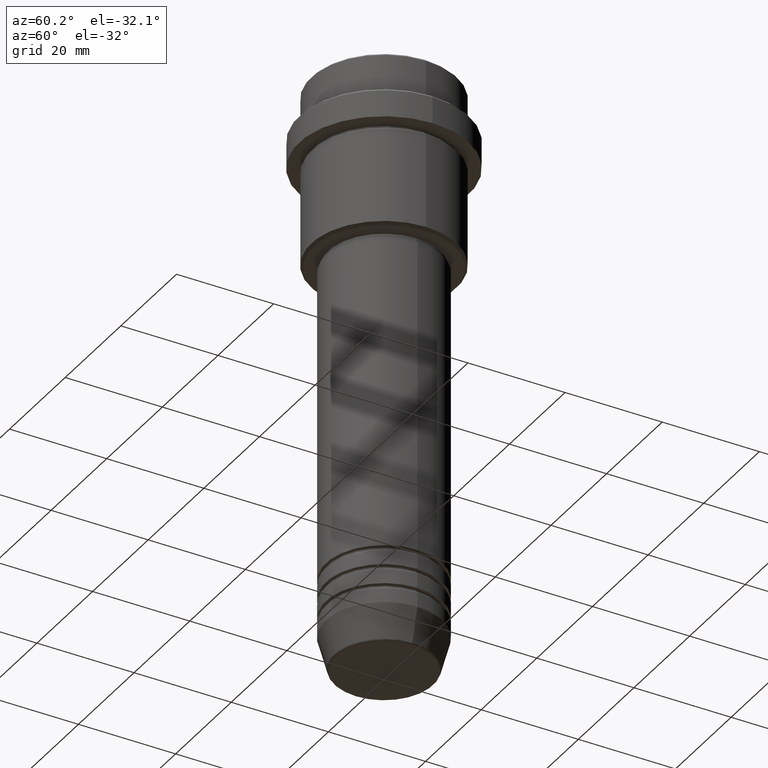
[diagram: clean part render]
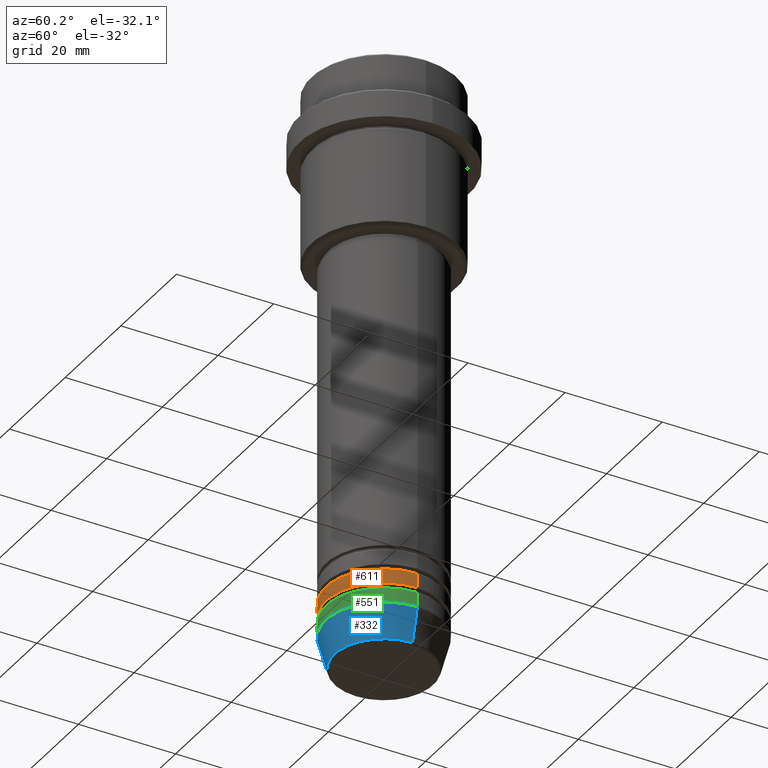
[diagram: same view with three faces highlighted in distinct colors, each labeled with its STEP entity id]
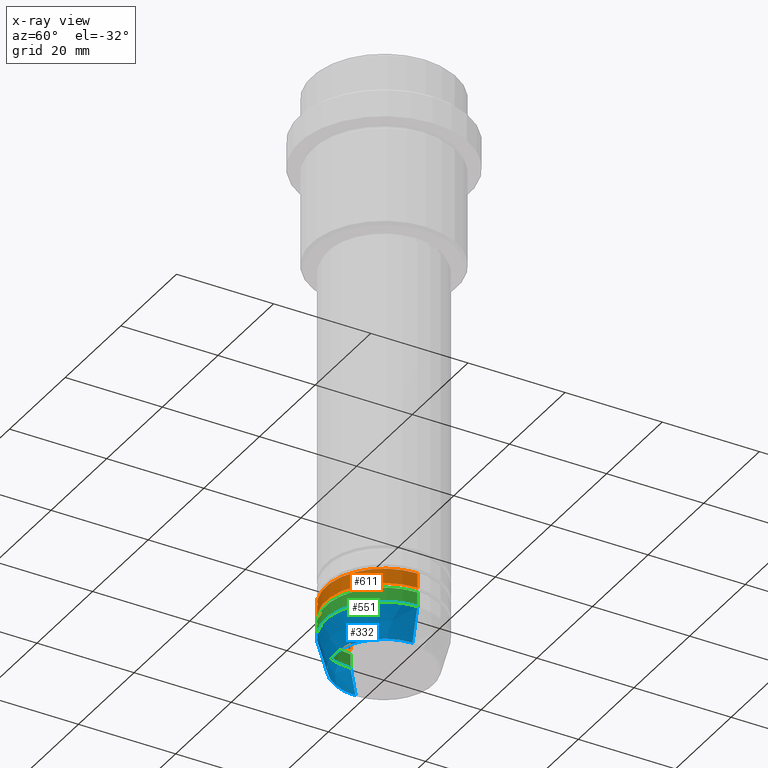
[diagram: x-ray of the same camera — body ghosted, the three highlighted faces saturated]
A machine part, auxiliary view with three faces highlighted in distinct colors.
The next image is the same camera in x-ray (body ghosted, the three faces saturated) — at least one of them is partly hidden behind the body in this view.
Their STEP definitions:

[orange] entity #611 — the highlighted cylindrical surface (partial cylindrical patch) has radius 12 mm, axis along (-0, -0, 1).
#9 = AXIS2_PLACEMENT_3D ( 'NONE', #1338, #1026, #28 ) ;
#19 = LINE ( 'NONE', #328, #451 ) ;
#28 = DIRECTION ( 'NONE',  ( 1.000000000000000000, 0.000000000000000000, 0.000000000000000000 ) ) ;
#36 = AXIS2_PLACEMENT_3D ( 'NONE', #663, #1097, #991 ) ;
#183 = CARTESIAN_POINT ( 'NONE',  ( -12.00000000000000000, 1.469576158976823947E-15, -109.9999999999999005 ) ) ;
#211 = CARTESIAN_POINT ( 'NONE',  ( 12.00000000000000000, 0.000000000000000000, -106.9999999999999005 ) ) ;
#253 = EDGE_CURVE ( 'NONE', #582, #1052, #458, .T. ) ;
#325 = DIRECTION ( 'NONE',  ( -0.000000000000000000, -0.000000000000000000, 1.000000000000000000 ) ) ;
#328 = CARTESIAN_POINT ( 'NONE',  ( 12.00000000000000000, 0.000000000000000000, 0.000000000000000000 ) ) ;
#334 = CIRCLE ( 'NONE', #523, 12.00000000000000000 ) ;
#349 = ORIENTED_EDGE ( 'NONE', *, *, #253, .F. ) ;
#451 = VECTOR ( 'NONE', #1188, 1000.000000000000000 ) ;
#458 = CIRCLE ( 'NONE', #9, 12.00000000000000000 ) ;
#474 = ORIENTED_EDGE ( 'NONE', *, *, #1365, .T. ) ;
#510 = EDGE_LOOP ( 'NONE', ( #921, #474, #723, #349 ) ) ;
#523 = AXIS2_PLACEMENT_3D ( 'NONE', #778, #325, #1409 ) ;
#541 = CARTESIAN_POINT ( 'NONE',  ( 12.00000000000000000, 0.000000000000000000, -109.9999999999999005 ) ) ;
#546 = VECTOR ( 'NONE', #1254, 1000.000000000000000 ) ;
#556 = EDGE_CURVE ( 'NONE', #1397, #1052, #19, .T. ) ;
#582 = VERTEX_POINT ( 'NONE', #1207 ) ;
#611 = ADVANCED_FACE ( 'NONE', ( #1329 ), #763, .T. ) ;
#663 = CARTESIAN_POINT ( 'NONE',  ( 0.000000000000000000, 0.000000000000000000, 0.000000000000000000 ) ) ;
#704 = LINE ( 'NONE', #1357, #546 ) ;
#723 = ORIENTED_EDGE ( 'NONE', *, *, #556, .T. ) ;
#763 = CYLINDRICAL_SURFACE ( 'NONE', #36, 12.00000000000000000 ) ;
#778 = CARTESIAN_POINT ( 'NONE',  ( 0.000000000000000000, 0.000000000000000000, -109.9999999999999005 ) ) ;
#921 = ORIENTED_EDGE ( 'NONE', *, *, #1170, .F. ) ;
#991 = DIRECTION ( 'NONE',  ( 1.000000000000000000, 0.000000000000000000, 0.000000000000000000 ) ) ;
#1026 = DIRECTION ( 'NONE',  ( -0.000000000000000000, -0.000000000000000000, 1.000000000000000000 ) ) ;
#1052 = VERTEX_POINT ( 'NONE', #211 ) ;
#1097 = DIRECTION ( 'NONE',  ( -0.000000000000000000, -0.000000000000000000, 1.000000000000000000 ) ) ;
#1170 = EDGE_CURVE ( 'NONE', #1349, #582, #704, .T. ) ;
#1188 = DIRECTION ( 'NONE',  ( -0.000000000000000000, -0.000000000000000000, 1.000000000000000000 ) ) ;
#1207 = CARTESIAN_POINT ( 'NONE',  ( -12.00000000000000000, 1.469576158976823947E-15, -106.9999999999999005 ) ) ;
#1254 = DIRECTION ( 'NONE',  ( -0.000000000000000000, -0.000000000000000000, 1.000000000000000000 ) ) ;
#1329 = FACE_OUTER_BOUND ( 'NONE', #510, .T. ) ;
#1338 = CARTESIAN_POINT ( 'NONE',  ( 0.000000000000000000, 0.000000000000000000, -106.9999999999999005 ) ) ;
#1349 = VERTEX_POINT ( 'NONE', #183 ) ;
#1357 = CARTESIAN_POINT ( 'NONE',  ( -12.00000000000000000, 1.469576158976823947E-15, 0.000000000000000000 ) ) ;
#1365 = EDGE_CURVE ( 'NONE', #1349, #1397, #334, .T. ) ;
#1397 = VERTEX_POINT ( 'NONE', #541 ) ;
#1409 = DIRECTION ( 'NONE',  ( 1.000000000000000000, 0.000000000000000000, 0.000000000000000000 ) ) ;

[blue] entity #332 — the highlighted conical surface has half-angle 15 deg.
#5 = CARTESIAN_POINT ( 'NONE',  ( 12.00000000000000000, 0.000000000000000000, -114.0000000000000000 ) ) ;
#21 = ORIENTED_EDGE ( 'NONE', *, *, #1164, .F. ) ;
#27 = EDGE_LOOP ( 'NONE', ( #839, #1246, #1415, #21 ) ) ;
#49 = DIRECTION ( 'NONE',  ( 1.000000000000000000, 0.000000000000000000, 0.000000000000000000 ) ) ;
#56 = VERTEX_POINT ( 'NONE', #424 ) ;
#125 = VERTEX_POINT ( 'NONE', #610 ) ;
#175 = FACE_OUTER_BOUND ( 'NONE', #27, .T. ) ;
#200 = DIRECTION ( 'NONE',  ( -0.000000000000000000, -0.000000000000000000, 1.000000000000000000 ) ) ;
#213 = AXIS2_PLACEMENT_3D ( 'NONE', #409, #200, #308 ) ;
#263 = DIRECTION ( 'NONE',  ( 1.000000000000000000, 0.000000000000000000, 0.000000000000000000 ) ) ;
#293 = LINE ( 'NONE', #850, #929 ) ;
#299 = CARTESIAN_POINT ( 'NONE',  ( 10.22365507213718949, 0.000000000000000000, -120.6294095225512564 ) ) ;
#308 = DIRECTION ( 'NONE',  ( 1.000000000000000000, 0.000000000000000000, 0.000000000000000000 ) ) ;
#332 = ADVANCED_FACE ( 'NONE', ( #175 ), #1044, .T. ) ;
#409 = CARTESIAN_POINT ( 'NONE',  ( 0.000000000000000000, 0.000000000000000000, -114.0000000000000000 ) ) ;
#424 = CARTESIAN_POINT ( 'NONE',  ( 12.00000000000000000, 0.000000000000000000, -114.0000000000000000 ) ) ;
#440 = VERTEX_POINT ( 'NONE', #299 ) ;
#519 = CARTESIAN_POINT ( 'NONE',  ( -12.00000000000000000, 1.469576158976823947E-15, -114.0000000000000000 ) ) ;
#542 = DIRECTION ( 'NONE',  ( 0.2588190451025213501, 0.000000000000000000, 0.9659258262890680902 ) ) ;
#591 = CARTESIAN_POINT ( 'NONE',  ( 0.000000000000000000, 0.000000000000000000, -114.0000000000000000 ) ) ;
#610 = CARTESIAN_POINT ( 'NONE',  ( -10.22365507213718949, 1.360806402472382744E-15, -120.6294095225512564 ) ) ;
#625 = EDGE_CURVE ( 'NONE', #125, #440, #884, .T. ) ;
#650 = DIRECTION ( 'NONE',  ( -0.2588190451025213501, 3.169619151431772337E-17, 0.9659258262890680902 ) ) ;
#799 = CIRCLE ( 'NONE', #982, 12.00000000000000000 ) ;
#817 = VECTOR ( 'NONE', #542, 1000.000000000000000 ) ;
#839 = ORIENTED_EDGE ( 'NONE', *, *, #879, .F. ) ;
#850 = CARTESIAN_POINT ( 'NONE',  ( -12.00000000000000000, 1.469576158976823947E-15, -114.0000000000000000 ) ) ;
#879 = EDGE_CURVE ( 'NONE', #125, #1220, #293, .T. ) ;
#884 = CIRCLE ( 'NONE', #1007, 10.22365507213718949 ) ;
#903 = DIRECTION ( 'NONE',  ( -0.000000000000000000, -0.000000000000000000, 1.000000000000000000 ) ) ;
#929 = VECTOR ( 'NONE', #650, 1000.000000000000000 ) ;
#982 = AXIS2_PLACEMENT_3D ( 'NONE', #591, #903, #49 ) ;
#1007 = AXIS2_PLACEMENT_3D ( 'NONE', #1138, #1249, #263 ) ;
#1044 = CONICAL_SURFACE ( 'NONE', #213, 12.00000000000000000, 0.2617993877991500740 ) ;
#1058 = EDGE_CURVE ( 'NONE', #440, #56, #1109, .T. ) ;
#1109 = LINE ( 'NONE', #5, #817 ) ;
#1138 = CARTESIAN_POINT ( 'NONE',  ( 0.000000000000000000, 0.000000000000000000, -120.6294095225512564 ) ) ;
#1164 = EDGE_CURVE ( 'NONE', #1220, #56, #799, .T. ) ;
#1220 = VERTEX_POINT ( 'NONE', #519 ) ;
#1246 = ORIENTED_EDGE ( 'NONE', *, *, #625, .T. ) ;
#1249 = DIRECTION ( 'NONE',  ( -0.000000000000000000, -0.000000000000000000, 1.000000000000000000 ) ) ;
#1415 = ORIENTED_EDGE ( 'NONE', *, *, #1058, .T. ) ;

[green] entity #551 — the highlighted cylindrical surface (partial cylindrical patch) has radius 12 mm, axis along (-0, -0, 1).
#26 = CYLINDRICAL_SURFACE ( 'NONE', #1248, 12.00000000000000000 ) ;
#41 = CIRCLE ( 'NONE', #844, 12.00000000000000000 ) ;
#49 = DIRECTION ( 'NONE',  ( 1.000000000000000000, 0.000000000000000000, 0.000000000000000000 ) ) ;
#56 = VERTEX_POINT ( 'NONE', #424 ) ;
#74 = DIRECTION ( 'NONE',  ( 1.000000000000000000, 0.000000000000000000, 0.000000000000000000 ) ) ;
#95 = DIRECTION ( 'NONE',  ( -0.000000000000000000, -0.000000000000000000, 1.000000000000000000 ) ) ;
#212 = CARTESIAN_POINT ( 'NONE',  ( 0.000000000000000000, 0.000000000000000000, 0.000000000000000000 ) ) ;
#305 = CARTESIAN_POINT ( 'NONE',  ( -12.00000000000000000, 1.469576158976823947E-15, -111.0000000000000000 ) ) ;
#355 = EDGE_CURVE ( 'NONE', #56, #1099, #1056, .T. ) ;
#424 = CARTESIAN_POINT ( 'NONE',  ( 12.00000000000000000, 0.000000000000000000, -114.0000000000000000 ) ) ;
#436 = DIRECTION ( 'NONE',  ( -0.000000000000000000, -0.000000000000000000, 1.000000000000000000 ) ) ;
#519 = CARTESIAN_POINT ( 'NONE',  ( -12.00000000000000000, 1.469576158976823947E-15, -114.0000000000000000 ) ) ;
#551 = ADVANCED_FACE ( 'NONE', ( #553 ), #26, .T. ) ;
#553 = FACE_OUTER_BOUND ( 'NONE', #674, .T. ) ;
#554 = LINE ( 'NONE', #866, #1319 ) ;
#591 = CARTESIAN_POINT ( 'NONE',  ( 0.000000000000000000, 0.000000000000000000, -114.0000000000000000 ) ) ;
#649 = ORIENTED_EDGE ( 'NONE', *, *, #355, .T. ) ;
#674 = EDGE_LOOP ( 'NONE', ( #1013, #1147, #649, #1212 ) ) ;
#799 = CIRCLE ( 'NONE', #982, 12.00000000000000000 ) ;
#815 = VECTOR ( 'NONE', #95, 1000.000000000000000 ) ;
#844 = AXIS2_PLACEMENT_3D ( 'NONE', #1166, #849, #74 ) ;
#848 = VERTEX_POINT ( 'NONE', #305 ) ;
#849 = DIRECTION ( 'NONE',  ( -0.000000000000000000, -0.000000000000000000, 1.000000000000000000 ) ) ;
#866 = CARTESIAN_POINT ( 'NONE',  ( -12.00000000000000000, 1.469576158976823947E-15, 0.000000000000000000 ) ) ;
#870 = DIRECTION ( 'NONE',  ( 1.000000000000000000, 0.000000000000000000, 0.000000000000000000 ) ) ;
#903 = DIRECTION ( 'NONE',  ( -0.000000000000000000, -0.000000000000000000, 1.000000000000000000 ) ) ;
#915 = CARTESIAN_POINT ( 'NONE',  ( 12.00000000000000000, 0.000000000000000000, -111.0000000000000000 ) ) ;
#958 = CARTESIAN_POINT ( 'NONE',  ( 12.00000000000000000, 0.000000000000000000, 0.000000000000000000 ) ) ;
#982 = AXIS2_PLACEMENT_3D ( 'NONE', #591, #903, #49 ) ;
#1013 = ORIENTED_EDGE ( 'NONE', *, *, #1396, .F. ) ;
#1056 = LINE ( 'NONE', #958, #815 ) ;
#1099 = VERTEX_POINT ( 'NONE', #915 ) ;
#1147 = ORIENTED_EDGE ( 'NONE', *, *, #1164, .T. ) ;
#1164 = EDGE_CURVE ( 'NONE', #1220, #56, #799, .T. ) ;
#1166 = CARTESIAN_POINT ( 'NONE',  ( 0.000000000000000000, 0.000000000000000000, -111.0000000000000000 ) ) ;
#1212 = ORIENTED_EDGE ( 'NONE', *, *, #1245, .F. ) ;
#1220 = VERTEX_POINT ( 'NONE', #519 ) ;
#1245 = EDGE_CURVE ( 'NONE', #848, #1099, #41, .T. ) ;
#1248 = AXIS2_PLACEMENT_3D ( 'NONE', #212, #1335, #870 ) ;
#1319 = VECTOR ( 'NONE', #436, 1000.000000000000000 ) ;
#1335 = DIRECTION ( 'NONE',  ( -0.000000000000000000, -0.000000000000000000, 1.000000000000000000 ) ) ;
#1396 = EDGE_CURVE ( 'NONE', #1220, #848, #554, .T. ) ;